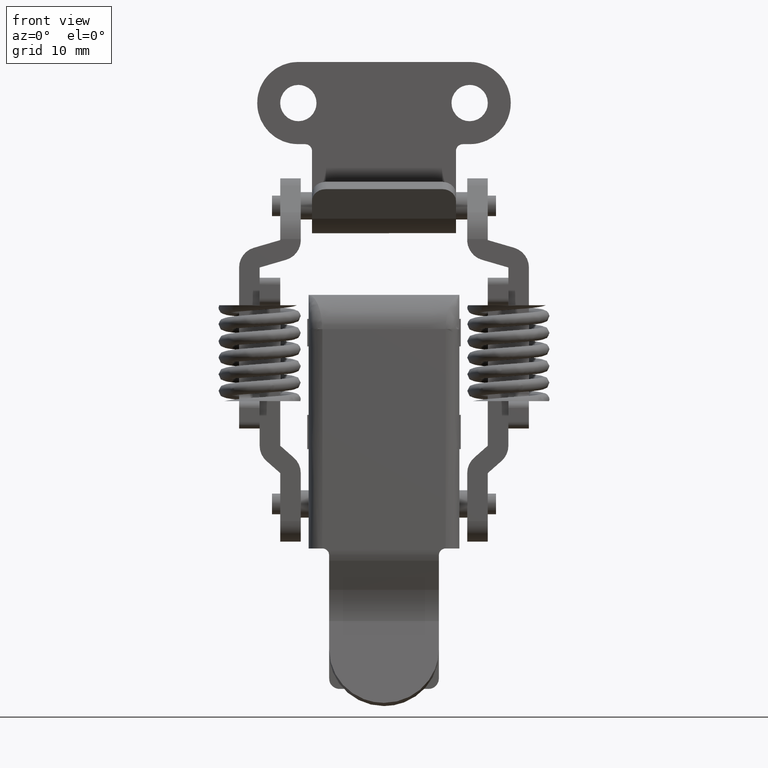
[diagram: clean part render]
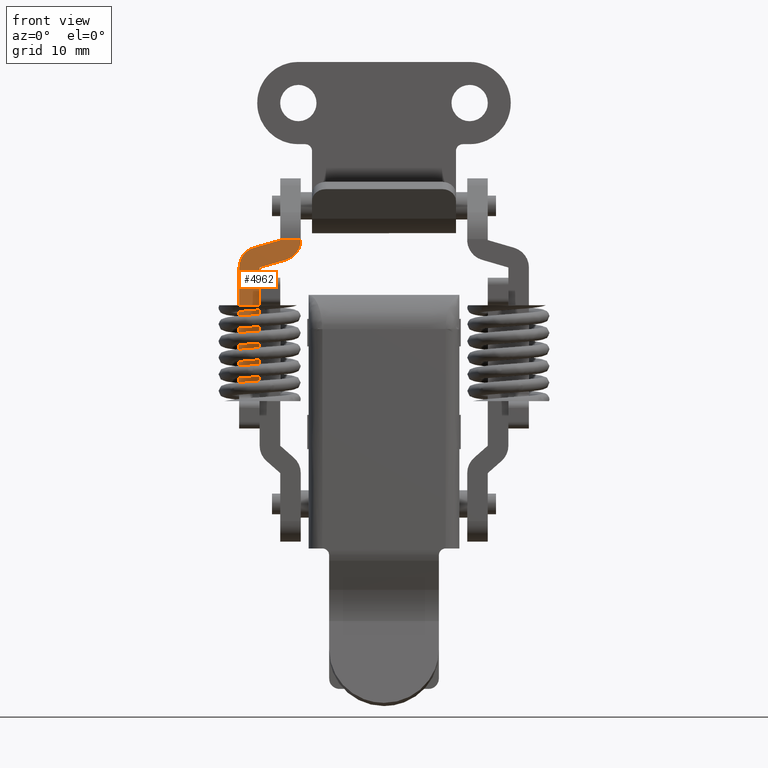
[diagram: same view with one face highlighted and labeled with its STEP entity id]
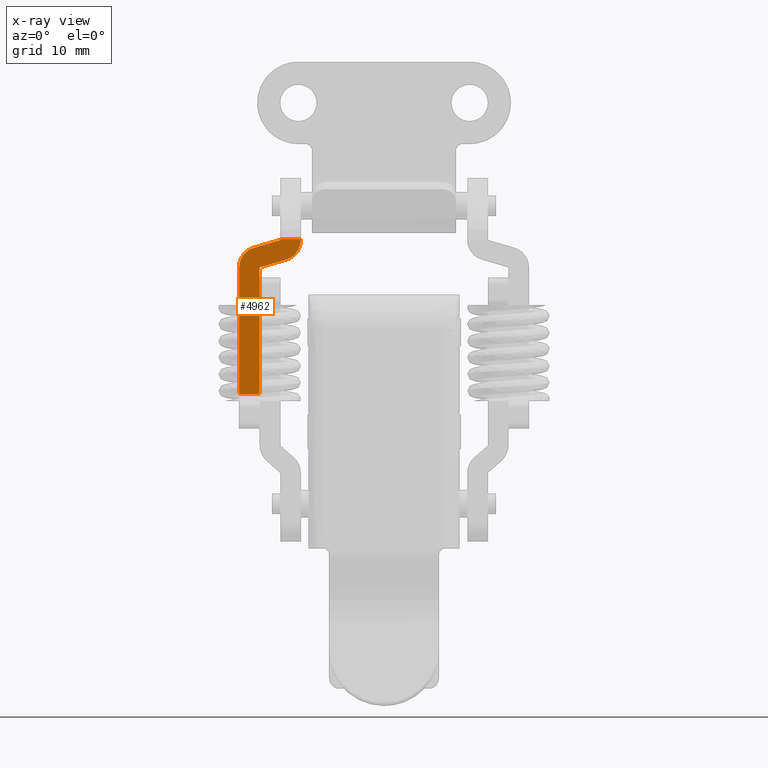
[diagram: x-ray of the same camera — body ghosted, the highlighted face saturated]
A machine part, front view. The second image highlights one B-rep face of the part: STEP entity #4962.
The next image is the same camera in x-ray: the body ghosted, the highlighted face saturated — about 0% of this face is hidden behind the body in this view.
In plain terms, the highlighted face is a freeform B-spline surface patch.
Its self-contained STEP definition (entity closure, byte-faithful):
#4019=CARTESIAN_POINT('',(-6.0,18.149999999999999,-9.000000000000199));
#4020=VERTEX_POINT('',#4019);
#4026=CARTESIAN_POINT('',(-6.0,18.149999999999999,-27.500000000000000));
#4027=VERTEX_POINT('',#4026);
#4028=CARTESIAN_POINT('',(-6.0,18.149999999999999,-9.000000000000199));
#4029=CARTESIAN_POINT('',(-6.0,18.149999999999999,-27.500000000000000));
#4030=QUASI_UNIFORM_CURVE('',1,(#4028,#4029),.UNSPECIFIED.,.F.,.U.);
#4031=EDGE_CURVE('',#4020,#4027,#4030,.T.);
#4172=CARTESIAN_POINT('',(-6.0,12.150000000000221,-5.000000000000201));
#4173=VERTEX_POINT('',#4172);
#4179=CARTESIAN_POINT('',(-6.0,14.310000878105839,-7.880000256114199));
#4180=VERTEX_POINT('',#4179);
#4181=CARTESIAN_POINT('',(-6.0,12.150000000000221,-5.000000000000201));
#4182=CARTESIAN_POINT('',(-6.000000000000004,12.149984725816930,-5.201090309980386));
#4183=CARTESIAN_POINT('',(-5.999999999999995,12.194604572168860,-5.643506524229825));
#4184=CARTESIAN_POINT('',(-6.000000000000004,12.393177758318039,-6.239218550524526));
#4185=CARTESIAN_POINT('',(-5.999999999999997,12.690714053371790,-6.743562683263357));
#4186=CARTESIAN_POINT('',(-5.999999999999999,13.082332557723349,-7.205046851295825));
#4187=CARTESIAN_POINT('',(-6.000000000000004,13.612791333551669,-7.613149346278373));
#4188=CARTESIAN_POINT('',(-5.999999999999999,14.078328595331049,-7.812476578311156));
#4189=CARTESIAN_POINT('',(-6.0,14.310000878105839,-7.880000256114199));
#4190=B_SPLINE_CURVE_WITH_KNOTS('',3,(#4181,#4182,#4183,#4184,#4185,#4186,#4187,#4188,#4189),.UNSPECIFIED.,.F.,.U.,(4,1,1,1,1,1,4),(0.000000063733516,0.603284189345778,1.327252213075804,1.870218906300480,2.352831059770904,3.137129697597710,3.861072613642609),.UNSPECIFIED.);
#4191=EDGE_CURVE('',#4173,#4180,#4190,.T.);
#4213=CARTESIAN_POINT('',(-6.0,14.310000878105839,-7.880000256114199));
#4214=CARTESIAN_POINT('',(-6.0,18.149999999999999,-9.000000000000199));
#4215=QUASI_UNIFORM_CURVE('',1,(#4213,#4214),.UNSPECIFIED.,.F.,.U.);
#4216=EDGE_CURVE('',#4180,#4020,#4215,.T.);
#4235=CARTESIAN_POINT('',(-6.0,18.989999999999998,-6.120000000000119));
#4236=VERTEX_POINT('',#4235);
#4257=CARTESIAN_POINT('',(-6.0,21.150000000000251,-9.000000000000199));
#4258=VERTEX_POINT('',#4257);
#4264=CARTESIAN_POINT('',(-6.0,21.150000000000251,-9.000000000000199));
#4265=CARTESIAN_POINT('',(-6.000000000000003,21.150062916840241,-8.758683623911324));
#4266=CARTESIAN_POINT('',(-6.000000000000008,21.103630975460089,-8.376636233939781));
#4267=CARTESIAN_POINT('',(-5.999999999999996,20.912001835893321,-7.781791803028293));
#4268=CARTESIAN_POINT('',(-5.999999999999998,20.589983351380919,-7.196014812818938));
#4269=CARTESIAN_POINT('',(-6.000000000000007,19.957648017234291,-6.536133341556032));
#4270=CARTESIAN_POINT('',(-5.999999999999998,19.356947034558310,-6.226647828031648));
#4271=CARTESIAN_POINT('',(-6.0,18.989999999999998,-6.120000000000119));
#4272=B_SPLINE_CURVE_WITH_KNOTS('',3,(#4264,#4265,#4266,#4267,#4268,#4269,#4270,#4271),.UNSPECIFIED.,.F.,.U.,(4,1,1,1,1,4),(0.000000063733949,0.723942808271031,1.146261430026143,1.870218463216006,2.714810332610859,3.861071698903125),.UNSPECIFIED.);
#4273=EDGE_CURVE('',#4258,#4236,#4272,.T.);
#4283=CARTESIAN_POINT('',(-6.0,15.150000000000000,-5.000000000000201));
#4284=VERTEX_POINT('',#4283);
#4307=CARTESIAN_POINT('',(-6.0,18.989999999999998,-6.120000000000119));
#4308=CARTESIAN_POINT('',(-6.0,15.150000000000000,-5.000000000000201));
#4309=QUASI_UNIFORM_CURVE('',1,(#4307,#4308),.UNSPECIFIED.,.F.,.U.);
#4310=EDGE_CURVE('',#4236,#4284,#4309,.T.);
#4337=CARTESIAN_POINT('',(-6.0,15.150000000000000,-4.859000000000090));
#4338=VERTEX_POINT('',#4337);
#4339=CARTESIAN_POINT('',(-6.0,15.150000000000000,-5.000000000000201));
#4340=CARTESIAN_POINT('',(-6.0,15.150000000000000,-4.859000000000090));
#4341=QUASI_UNIFORM_CURVE('',1,(#4339,#4340),.UNSPECIFIED.,.F.,.U.);
#4342=EDGE_CURVE('',#4284,#4338,#4341,.T.);
#4457=CARTESIAN_POINT('',(-6.0,12.150000000000221,-4.859000000000090));
#4458=VERTEX_POINT('',#4457);
#4469=CARTESIAN_POINT('',(-6.0,12.150000000000221,-5.000000000000201));
#4470=CARTESIAN_POINT('',(-6.0,12.150000000000221,-4.859000000000090));
#4471=QUASI_UNIFORM_CURVE('',1,(#4469,#4470),.UNSPECIFIED.,.F.,.U.);
#4472=EDGE_CURVE('',#4173,#4458,#4471,.T.);
#4592=CARTESIAN_POINT('',(-6.0,21.150000000000251,-27.500000000000000));
#4593=VERTEX_POINT('',#4592);
#4605=CARTESIAN_POINT('',(-6.0,21.150000000000251,-27.500000000000000));
#4606=CARTESIAN_POINT('',(-6.0,21.150000000000251,-9.000000000000199));
#4607=QUASI_UNIFORM_CURVE('',1,(#4605,#4606),.UNSPECIFIED.,.F.,.U.);
#4608=EDGE_CURVE('',#4593,#4258,#4607,.T.);
#4634=CARTESIAN_POINT('',(-6.0,15.150000000000000,-4.859000000000090));
#4635=CARTESIAN_POINT('',(-6.0,12.150000000000221,-4.859000000000090));
#4636=QUASI_UNIFORM_CURVE('',1,(#4634,#4635),.UNSPECIFIED.,.F.,.U.);
#4637=EDGE_CURVE('',#4338,#4458,#4636,.T.);
#4725=CARTESIAN_POINT('',(-6.0,21.150000000000251,-27.500000000000000));
#4726=CARTESIAN_POINT('',(-6.0,18.149999999999999,-27.500000000000000));
#4727=QUASI_UNIFORM_CURVE('',1,(#4725,#4726),.UNSPECIFIED.,.F.,.U.);
#4728=EDGE_CURVE('',#4593,#4027,#4727,.T.);
#4945=CARTESIAN_POINT('',(-6.0,11.700449627170480,-28.630917906117340));
#4946=CARTESIAN_POINT('',(-6.0,11.700449627170480,-3.728081486603804));
#4947=CARTESIAN_POINT('',(-6.0,21.599549568167280,-28.630917906117340));
#4948=CARTESIAN_POINT('',(-6.0,21.599549568167280,-3.728081486603804));
#4949=B_SPLINE_SURFACE_WITH_KNOTS('',1,1,((#4945,#4947),(#4946,#4948)),.UNSPECIFIED.,.F.,.F.,.U.,(2,2),(2,2),(0.0,24.902836419513541),(0.0,9.899099940996797),.UNSPECIFIED.);
#4950=ORIENTED_EDGE('',*,*,#4472,.T.);
#4951=ORIENTED_EDGE('',*,*,#4637,.F.);
#4952=ORIENTED_EDGE('',*,*,#4342,.F.);
#4953=ORIENTED_EDGE('',*,*,#4310,.F.);
#4954=ORIENTED_EDGE('',*,*,#4273,.F.);
#4955=ORIENTED_EDGE('',*,*,#4608,.F.);
#4956=ORIENTED_EDGE('',*,*,#4728,.T.);
#4957=ORIENTED_EDGE('',*,*,#4031,.F.);
#4958=ORIENTED_EDGE('',*,*,#4216,.F.);
#4959=ORIENTED_EDGE('',*,*,#4191,.F.);
#4960=EDGE_LOOP('',(#4950,#4951,#4952,#4953,#4954,#4955,#4956,#4957,#4958,#4959));
#4961=FACE_OUTER_BOUND('',#4960,.T.);
#4962=ADVANCED_FACE('',(#4961),#4949,.T.);